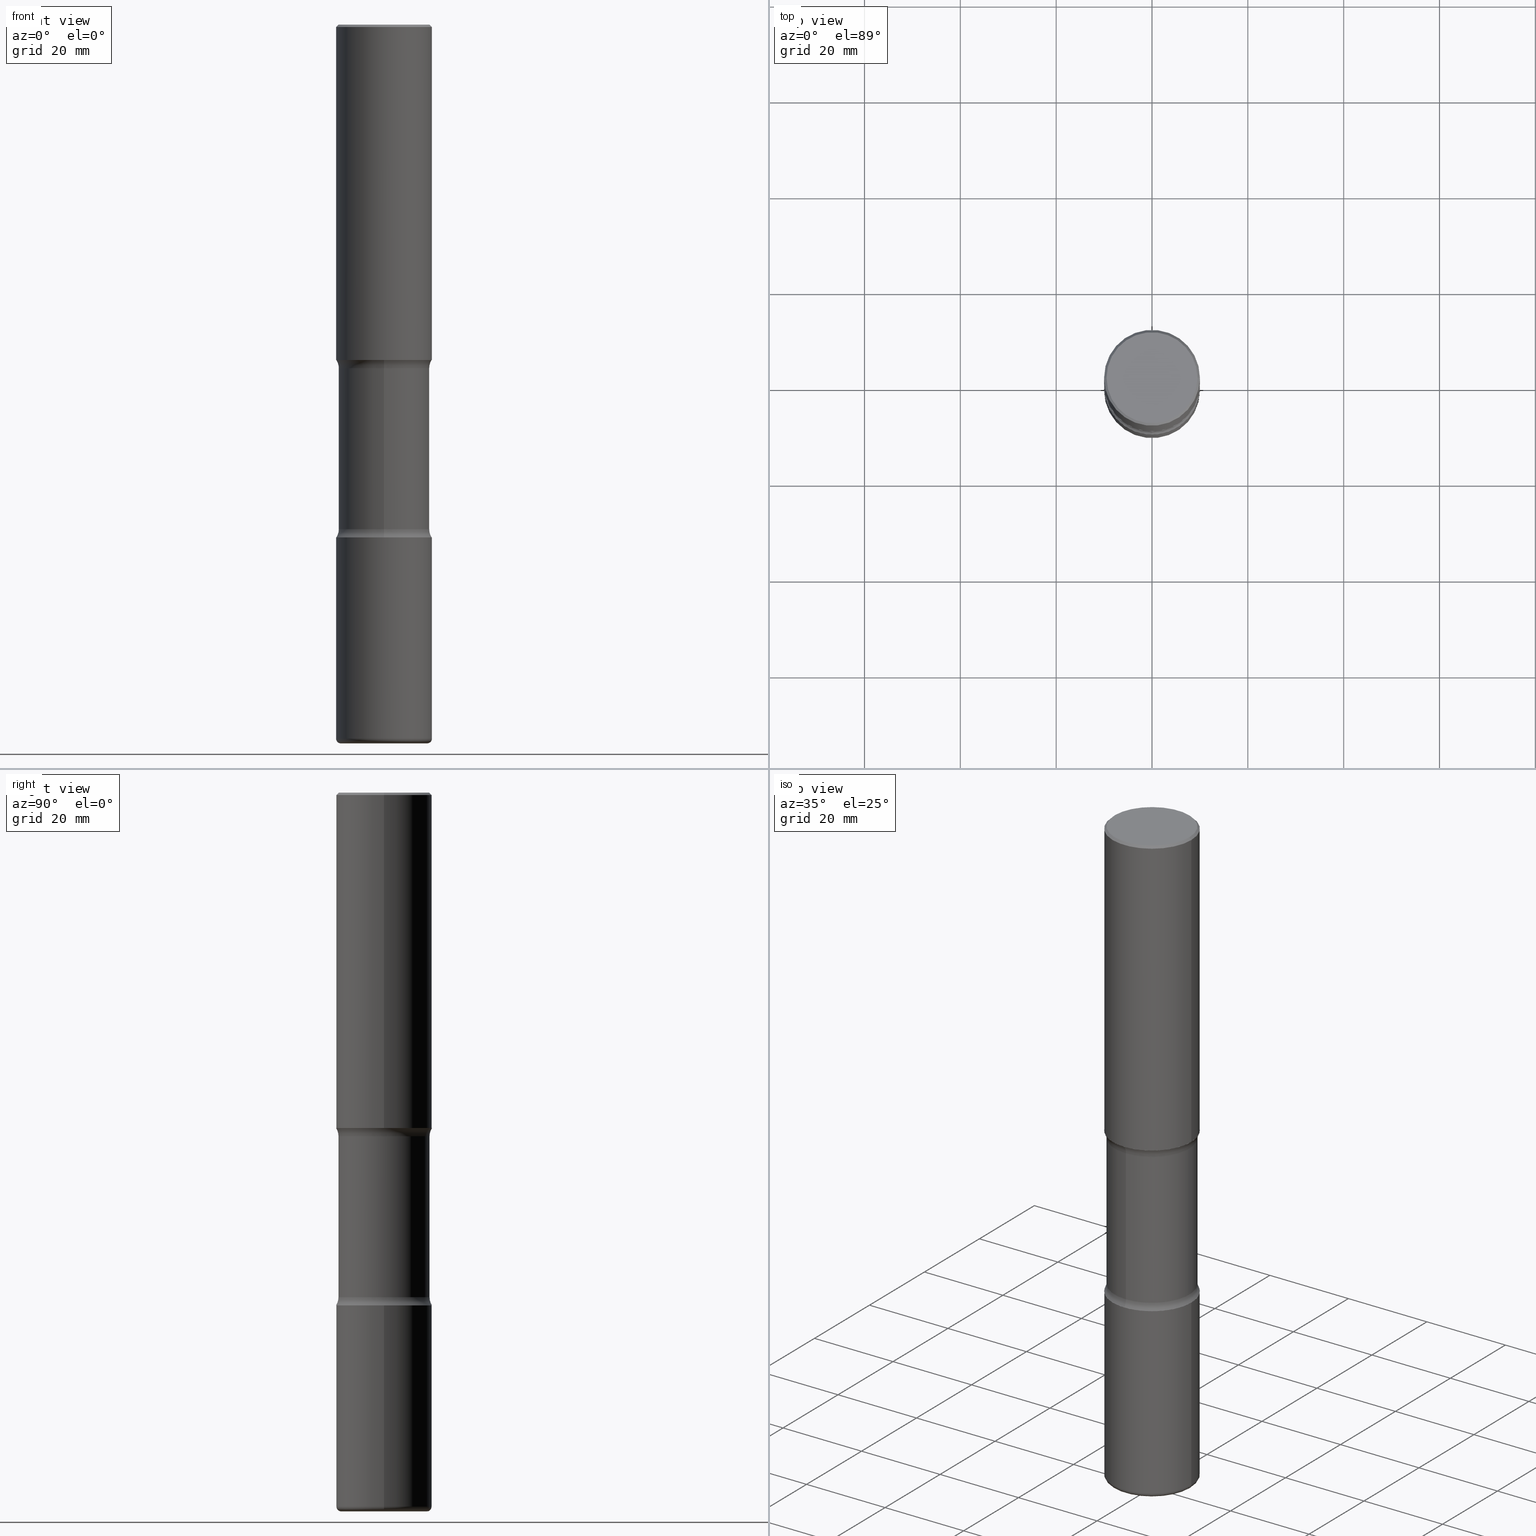
[diagram: canonical four-view strip — front | top / right | iso, engineering-drawing reading convention]
A machine part, canonical four-view strip (front | top / right | iso — engineering-drawing reading convention). The complete STEP part file that produces these views, byte-faithful:
ISO-10303-21;
HEADER;
FILE_DESCRIPTION (( 'STEP AP203' ),
    '1' );
FILE_NAME ('47743.STEP',
    '2024-03-02T08:20:14',
    ( '' ),
    ( '' ),
    'SwSTEP 2.0',
    'SolidWorks 2023',
    '' );
FILE_SCHEMA (( 'CONFIG_CONTROL_DESIGN' ));
ENDSEC;

DATA;
#1 = DIRECTION ( 'NONE',  ( -2.445468806185136597E-29, 3.491481338843145583E-15, 1.000000000000000000 ) ) ;
#2 = DIRECTION ( 'NONE',  ( 2.499563752616943710E-29, -3.414014296659653741E-15, -1.000000000000000000 ) ) ;
#3 = EDGE_CURVE ( 'NONE', #535, #453, #20, .T. ) ;
#4 = DIRECTION ( 'NONE',  ( 2.499563752616943430E-29, -3.414014296659653741E-15, -1.000000000000000000 ) ) ;
#5 = CIRCLE ( 'NONE', #272, 0.3543000000000003924 ) ;
#6 = AXIS2_PLACEMENT_3D ( 'NONE', #433, #38, #35 ) ;
#7 = CARTESIAN_POINT ( 'NONE',  ( 2.609533152651356620E-15, 0.3736999999999999211, -1.300498063835582814E-15 ) ) ;
#8 = DIRECTION ( 'NONE',  ( 1.000000000000000000, -6.982962677686266711E-15, 4.876176775795935793E-29 ) ) ;
#9 = ORIENTED_EDGE ( 'NONE', *, *, #31, .F. ) ;
#10 = FACE_OUTER_BOUND ( 'NONE', #75, .T. ) ;
#11 = EDGE_CURVE ( 'NONE', #15, #435, #157, .T. ) ;
#12 = CIRCLE ( 'NONE', #220, 0.3937000000000002720 ) ;
#13 = ORIENTED_EDGE ( 'NONE', *, *, #557, .T. ) ;
#14 = PERSON_AND_ORGANIZATION_ROLE ( 'creator' ) ;
#15 = VERTEX_POINT ( 'NONE', #68 ) ;
#16 = EDGE_CURVE ( 'NONE', #118, #361, #404, .T. ) ;
#17 = VERTEX_POINT ( 'NONE', #202 ) ;
#18 = PERSON ( 'UNSPECIFIED', 'UNSPECIFIED', 'UNSPECIFIED', ('UNSPECIFIED'), ('UNSPECIFIED'), ('UNSPECIFIED') ) ;
#19 = DATE_AND_TIME ( #374, #71 ) ;
#20 = CIRCLE ( 'NONE', #191, 0.3937000000000002720 ) ;
#21 = AXIS2_PLACEMENT_3D ( 'NONE', #248, #425, #493 ) ;
#22 = LOCAL_TIME ( 3, 20, 14.00000000000000000, #60 ) ;
#23 = DIRECTION ( 'NONE',  ( 1.000000000000000000, -6.982962677686280910E-15, 0.000000000000000000 ) ) ;
#24 = CARTESIAN_POINT ( 'NONE',  ( 1.434536456396262699E-28, -2.048137868178777275E-14, -5.866099999999998538 ) ) ;
#25 = ORIENTED_EDGE ( 'NONE', *, *, #406, .F. ) ;
#26 = DIRECTION ( 'NONE',  ( -2.445468806185136597E-29, 3.491481338843145583E-15, 1.000000000000000000 ) ) ;
#27 = ORIENTED_EDGE ( 'NONE', *, *, #3, .F. ) ;
#28 = DIRECTION ( 'NONE',  ( 1.000000000000000000, -6.982962677686266711E-15, 4.876176775795935793E-29 ) ) ;
#29 = CARTESIAN_POINT ( 'NONE',  ( -0.3936999999999999389, 2.679362779428219524E-15, -0.02000000000000010103 ) ) ;
#30 = VERTEX_POINT ( 'NONE', #261 ) ;
#31 = EDGE_CURVE ( 'NONE', #94, #196, #411, .T. ) ;
#32 = DIRECTION ( 'NONE',  ( 2.499563752616943710E-29, -3.414014296659653741E-15, -1.000000000000000000 ) ) ;
#33 = CIRCLE ( 'NONE', #346, 0.1249999999999999029 ) ;
#34 = ORIENTED_EDGE ( 'NONE', *, *, #508, .F. ) ;
#35 = DIRECTION ( 'NONE',  ( 6.982962677686266711E-15, 1.000000000000000000, -2.921762560068729411E-15 ) ) ;
#36 = DIRECTION ( 'NONE',  ( 6.982962677686265922E-15, 1.000000000000000000, -3.414014296659653741E-15 ) ) ;
#37 = DIRECTION ( 'NONE',  ( 2.499563752616943710E-29, -3.414014296659653741E-15, -1.000000000000000000 ) ) ;
#38 = DIRECTION ( 'NONE',  ( 2.499563752616943710E-29, -3.414014296659653741E-15, -1.000000000000000000 ) ) ;
#39 = EDGE_CURVE ( 'NONE', #284, #530, #525, .T. ) ;
#40 = FACE_OUTER_BOUND ( 'NONE', #496, .T. ) ;
#41 = CARTESIAN_POINT ( 'NONE',  ( 6.829029461346524548E-29, -9.964976017815853586E-15, -2.823256588393414646 ) ) ;
#42 = ORIENTED_EDGE ( 'NONE', *, *, #89, .F. ) ;
#43 = CIRCLE ( 'NONE', #21, 0.03940000000000026814 ) ;
#44 = AXIS2_PLACEMENT_3D ( 'NONE', #510, #293, #296 ) ;
#45 = CARTESIAN_POINT ( 'NONE',  ( 6.739467482965614869E-29, -9.622173421717819657E-15, -2.755899999999998240 ) ) ;
#46 = ADVANCED_FACE ( 'NONE', ( #40 ), #482, .F. ) ;
#47 = DIRECTION ( 'NONE',  ( 2.499563752616943710E-29, -3.414014296659653741E-15, -1.000000000000000000 ) ) ;
#48 = CARTESIAN_POINT ( 'NONE',  ( 1.434536456396262699E-28, -2.048137868178777275E-14, -5.866099999999998538 ) ) ;
#49 = CIRCLE ( 'NONE', #454, 0.3937000000000002164 ) ;
#50 = FACE_OUTER_BOUND ( 'NONE', #303, .T. ) ;
#51 = EDGE_CURVE ( 'NONE', #535, #435, #33, .T. ) ;
#52 = ORIENTED_EDGE ( 'NONE', *, *, #423, .T. ) ;
#53 = AXIS2_PLACEMENT_3D ( 'NONE', #521, #83, #265 ) ;
#54 = CARTESIAN_POINT ( 'NONE',  ( 6.660667374498401538E-29, -9.735019662066511300E-15, -2.755899999999998240 ) ) ;
#55 = COORDINATED_UNIVERSAL_TIME_OFFSET ( 5, 0, .BEHIND. ) ;
#56 = ORIENTED_EDGE ( 'NONE', *, *, #402, .F. ) ;
#57 = EDGE_CURVE ( 'NONE', #196, #94, #82, .T. ) ;
#58 = APPROVAL_DATE_TIME ( #457, #542 ) ;
#59 = DIRECTION ( 'NONE',  ( -2.445468806185136877E-29, 3.491481338843145188E-15, 1.000000000000000000 ) ) ;
#60 = COORDINATED_UNIVERSAL_TIME_OFFSET ( 5, 0, .BEHIND. ) ;
#61 = AXIS2_PLACEMENT_3D ( 'NONE', #513, #264, #436 ) ;
#62 = LOCAL_TIME ( 3, 20, 14.00000000000000000, #55 ) ;
#63 = DIRECTION ( 'NONE',  ( 1.000000000000000000, 0.000000000000000000, 0.000000000000000000 ) ) ;
#64 = ORIENTED_EDGE ( 'NONE', *, *, #487, .T. ) ;
#65 = APPROVAL ( #533, 'UNSPECIFIED' ) ;
#66 = EDGE_LOOP ( 'NONE', ( #391, #539 ) ) ;
#67 = CARTESIAN_POINT ( 'NONE',  ( 6.739467482965614869E-29, -9.622173421717819657E-15, -2.755899999999998240 ) ) ;
#68 = CARTESIAN_POINT ( 'NONE',  ( 2.611628041454733028E-15, 0.3739999999999901736, -2.823256588393415534 ) ) ;
#69 = CYLINDRICAL_SURFACE ( 'NONE', #6, 0.3740000000000001656 ) ;
#70 = CLOSED_SHELL ( 'NONE', ( #522, #125, #459, #92, #390, #115 ) ) ;
#71 = LOCAL_TIME ( 3, 20, 14.00000000000000000, #417 ) ;
#72 = ORIENTED_EDGE ( 'NONE', *, *, #57, .T. ) ;
#73 = ADVANCED_FACE ( 'NONE', ( #441 ), #537, .F. ) ;
#74 = DIRECTION ( 'NONE',  ( -2.445468806185136877E-29, 3.491481338843145188E-15, 1.000000000000000000 ) ) ;
#75 = EDGE_LOOP ( 'NONE', ( #134, #492 ) ) ;
#76 = DIRECTION ( 'NONE',  ( -6.982962677686264344E-15, -1.000000000000000000, 0.000000000000000000 ) ) ;
#77 = DIRECTION ( 'NONE',  ( -2.445468806185136597E-29, 3.491481338843145583E-15, 1.000000000000000000 ) ) ;
#78 = ORIENTED_EDGE ( 'NONE', *, *, #480, .F. ) ;
#79 = DIRECTION ( 'NONE',  ( -6.982962677686265922E-15, -1.000000000000000000, 3.414014296659653741E-15 ) ) ;
#80 = DIRECTION ( 'NONE',  ( -2.445468806185136597E-29, 3.491481338843145583E-15, 1.000000000000000000 ) ) ;
#81 = AXIS2_PLACEMENT_3D ( 'NONE', #552, #331, #550 ) ;
#82 = CIRCLE ( 'NONE', #145, 0.3936999999999999389 ) ;
#83 = DIRECTION ( 'NONE',  ( -2.445468806185136597E-29, 3.491481338843145583E-15, 1.000000000000000000 ) ) ;
#84 =( CONVERSION_BASED_UNIT ( 'INCH', #401 ) LENGTH_UNIT ( ) NAMED_UNIT ( #429 ) );
#85 = DIRECTION ( 'NONE',  ( -2.445468806185136597E-29, 3.491481338843145583E-15, 1.000000000000000000 ) ) ;
#86 = AXIS2_PLACEMENT_3D ( 'NONE', #121, #300, #475 ) ;
#87 = VECTOR ( 'NONE', #251, 39.37007874015748143 ) ;
#88 = SECURITY_CLASSIFICATION ( '', '', #232 ) ;
#89 = EDGE_CURVE ( 'NONE', #280, #138, #354, .T. ) ;
#90 = PRODUCT ( '47743', '47743', '', ( #135 ) ) ;
#91 = ORIENTED_EDGE ( 'NONE', *, *, #301, .F. ) ;
#92 = ADVANCED_FACE ( 'NONE', ( #445 ), #214, .F. ) ;
#93 = CYLINDRICAL_SURFACE ( 'NONE', #218, 0.3937000000000002164 ) ;
#94 = VERTEX_POINT ( 'NONE', #219 ) ;
#95 = VECTOR ( 'NONE', #59, 39.37007874015748143 ) ;
#96 = APPROVAL_PERSON_ORGANIZATION ( #490, #542, #104 ) ;
#97 = APPROVAL_STATUS ( 'not_yet_approved' ) ;
#98 = EDGE_LOOP ( 'NONE', ( #322, #422 ) ) ;
#99 = CARTESIAN_POINT ( 'NONE',  ( 0.000000000000000000, 0.000000000000000000, 0.000000000000000000 ) ) ;
#100 = DIRECTION ( 'NONE',  ( -2.445468806185136597E-29, 3.491481338843145583E-15, 1.000000000000000000 ) ) ;
#101 = ORIENTED_EDGE ( 'NONE', *, *, #312, .T. ) ;
#102 = DIRECTION ( 'NONE',  ( 6.860497997771527618E-15, 1.000000000000000000, 0.000000000000000000 ) ) ;
#103 = ORIENTED_EDGE ( 'NONE', *, *, #51, .F. ) ;
#104 = APPROVAL_ROLE ( '' ) ;
#105 = ADVANCED_FACE ( 'NONE', ( #177 ), #268, .T. ) ;
#106 = CIRCLE ( 'NONE', #483, 0.1249999999999998335 ) ;
#107 = ORGANIZATION ( 'UNSPECIFIED', 'UNSPECIFIED', '' ) ;
#108 = ORIENTED_EDGE ( 'NONE', *, *, #160, .F. ) ;
#109 = DIRECTION ( 'NONE',  ( 0.7071067811865466846, -7.319954787623252890E-15, -0.7071067811865483499 ) ) ;
#110 = DIRECTION ( 'NONE',  ( -2.445468806185136597E-29, 3.491481338843145583E-15, 1.000000000000000000 ) ) ;
#111 = ORIENTED_EDGE ( 'NONE', *, *, #278, .F. ) ;
#112 = EDGE_LOOP ( 'NONE', ( #42, #250, #72, #276 ) ) ;
#113 = CYLINDRICAL_SURFACE ( 'NONE', #166, 0.3937000000000002164 ) ;
#114 = EDGE_LOOP ( 'NONE', ( #91, #287 ) ) ;
#115 = ADVANCED_FACE ( 'NONE', ( #240 ), #357, .T. ) ;
#116 = DIRECTION ( 'NONE',  ( 6.982962677686265922E-15, 1.000000000000000000, -2.775563112689113540E-15 ) ) ;
#117 = CIRCLE ( 'NONE', #128, 0.3937000000000004385 ) ;
#118 = VERTEX_POINT ( 'NONE', #283 ) ;
#119 = VECTOR ( 'NONE', #109, 39.37007874015748143 ) ;
#120 = DIRECTION ( 'NONE',  ( -1.000000000000000000, 6.982962677686265922E-15, -4.876176775795935793E-29 ) ) ;
#121 = CARTESIAN_POINT ( 'NONE',  ( 1.013706345712835491E-28, -1.447304001658688186E-14, -4.145243411606583273 ) ) ;
#122 = CARTESIAN_POINT ( 'NONE',  ( 6.856494937320590076E-29, -9.925643892983175518E-15, -2.823256588393414201 ) ) ;
#123 = CARTESIAN_POINT ( 'NONE',  ( 2.749192406205187346E-15, 0.3936999999999854505, -4.212600000000000122 ) ) ;
#124 = CARTESIAN_POINT ( 'NONE',  ( 1.030178189293550378E-28, -1.470821428801063089E-14, -4.212599999999998346 ) ) ;
#125 = ADVANCED_FACE ( 'NONE', ( #353 ), #412, .T. ) ;
#126 = CLOSED_SHELL ( 'NONE', ( #538, #105, #271, #137, #213, #192 ) ) ;
#127 = CC_DESIGN_DATE_AND_TIME_ASSIGNMENT ( #362, #494, ( #88 ) ) ;
#128 = AXIS2_PLACEMENT_3D ( 'NONE', #54, #183, #224 ) ;
#129 = AXIS2_PLACEMENT_3D ( 'NONE', #150, #427, #281 ) ;
#130 = DIRECTION ( 'NONE',  ( 2.499563752616943710E-29, -3.414014296659653741E-15, -1.000000000000000000 ) ) ;
#131 = EDGE_CURVE ( 'NONE', #30, #541, #49, .T. ) ;
#132 = AXIS2_PLACEMENT_3D ( 'NONE', #554, #452, #139 ) ;
#133 = EDGE_LOOP ( 'NONE', ( #204, #25, #377, #399 ) ) ;
#134 = ORIENTED_EDGE ( 'NONE', *, *, #432, .T. ) ;
#135 = MECHANICAL_CONTEXT ( 'NONE', #358, 'mechanical' ) ;
#136 = PERSON_AND_ORGANIZATION_ROLE ( 'classification_officer' ) ;
#137 = ADVANCED_FACE ( 'NONE', ( #50 ), #369, .T. ) ;
#138 = VERTEX_POINT ( 'NONE', #231 ) ;
#139 = DIRECTION ( 'NONE',  ( -1.000000000000000000, 6.982962677686265922E-15, -4.876176775795935793E-29 ) ) ;
#140 = COORDINATED_UNIVERSAL_TIME_OFFSET ( 5, 0, .BEHIND. ) ;
#141 = CARTESIAN_POINT ( 'NONE',  ( 1.444171603492632270E-28, -2.061894304653819197E-14, -5.905499999999999972 ) ) ;
#142 = ORIENTED_EDGE ( 'NONE', *, *, #487, .F. ) ;
#143 = APPLICATION_PROTOCOL_DEFINITION ( 'international standard', 'config_control_design', 1994, #358 ) ;
#144 = PRODUCT_DEFINITION_SHAPE ( 'NONE', 'NONE',  #233 ) ;
#145 = AXIS2_PLACEMENT_3D ( 'NONE', #438, #205, #394 ) ;
#146 = APPROVAL_DATE_TIME ( #19, #187 ) ;
#147 = CARTESIAN_POINT ( 'NONE',  ( 1.434536456396262699E-28, -2.048137868178777275E-14, -5.866099999999998538 ) ) ;
#148 = COORDINATED_UNIVERSAL_TIME_OFFSET ( 5, 0, .BEHIND. ) ;
#149 = CARTESIAN_POINT ( 'NONE',  ( 0.3937000000000002720, -1.745740669421571411E-14, -4.212599999999998346 ) ) ;
#150 = CARTESIAN_POINT ( 'NONE',  ( 1.030178189293550378E-28, -1.470821428801063089E-14, -4.212599999999998346 ) ) ;
#151 = EDGE_CURVE ( 'NONE', #379, #361, #117, .T. ) ;
#152 = DIRECTION ( 'NONE',  ( 1.000000000000000000, -6.982962677686266711E-15, 4.883557194083112340E-29 ) ) ;
#153 = DATE_AND_TIME ( #225, #62 ) ;
#154 = ORIENTED_EDGE ( 'NONE', *, *, #432, .F. ) ;
#155 = CIRCLE ( 'NONE', #420, 0.3937000000000002720 ) ;
#156 = CIRCLE ( 'NONE', #252, 0.3740000000000001656 ) ;
#157 = LINE ( 'NONE', #340, #332 ) ;
#158 = DIRECTION ( 'NONE',  ( 1.000000000000000000, -6.982962677686266711E-15, 4.876176775795935793E-29 ) ) ;
#159 = DIRECTION ( 'NONE',  ( 2.499563752616943710E-29, -3.414014296659653741E-15, -1.000000000000000000 ) ) ;
#160 = EDGE_CURVE ( 'NONE', #30, #325, #229, .T. ) ;
#161 = CARTESIAN_POINT ( 'NONE',  ( 4.890937612370298557E-31, -6.982962677686327354E-17, -0.02000000000000010103 ) ) ;
#162 = LINE ( 'NONE', #389, #87 ) ;
#163 = ORIENTED_EDGE ( 'NONE', *, *, #57, .F. ) ;
#164 = CARTESIAN_POINT ( 'NONE',  ( 6.739467482965614869E-29, -9.622173421717819657E-15, -2.755899999999998240 ) ) ;
#165 = CARTESIAN_POINT ( 'NONE',  ( 6.660667374498401538E-29, -9.735019662066511300E-15, -2.755899999999998240 ) ) ;
#166 = AXIS2_PLACEMENT_3D ( 'NONE', #372, #376, #534 ) ;
#167 = APPLICATION_CONTEXT ( 'configuration controlled 3d designs of mechanical parts and assemblies' ) ;
#168 = CC_DESIGN_PERSON_AND_ORGANIZATION_ASSIGNMENT ( #416, #14, ( #233 ) ) ;
#169 = PLANE ( 'NONE',  #405 ) ;
#170 = CARTESIAN_POINT ( 'NONE',  ( 6.739467482965614869E-29, -9.622173421717819657E-15, -2.755899999999998240 ) ) ;
#171 = CARTESIAN_POINT ( 'NONE',  ( 0.3937000000000004385, -2.323057108799285912E-14, -5.866099999999998538 ) ) ;
#172 =( LENGTH_UNIT ( ) NAMED_UNIT ( * ) SI_UNIT ( $, .METRE. ) );
#173 = AXIS2_PLACEMENT_3D ( 'NONE', #141, #239, #502 ) ;
#174 = CARTESIAN_POINT ( 'NONE',  ( 4.890937612370298557E-31, -6.982962677686327354E-17, -0.02000000000000010103 ) ) ;
#175 = ADVANCED_FACE ( 'NONE', ( #410 ), #193, .F. ) ;
#176 = UNCERTAINTY_MEASURE_WITH_UNIT (LENGTH_MEASURE( 1.000000000000000082E-05 ), #84, 'distance_accuracy_value', 'NONE');
#177 = FACE_OUTER_BOUND ( 'NONE', #316, .T. ) ;
#178 = ORIENTED_EDGE ( 'NONE', *, *, #443, .T. ) ;
#179 = AXIS2_PLACEMENT_3D ( 'NONE', #170, #4, #355 ) ;
#180 = EDGE_CURVE ( 'NONE', #530, #196, #473, .T. ) ;
#181 = PERSON_AND_ORGANIZATION ( #18, #107 ) ;
#182 = PRODUCT_RELATED_PRODUCT_CATEGORY ( 'detail', '', ( #90 ) ) ;
#183 = DIRECTION ( 'NONE',  ( 2.499563752616943710E-29, -3.414014296659653741E-15, -1.000000000000000000 ) ) ;
#184 = AXIS2_PLACEMENT_3D ( 'NONE', #67, #80, #249 ) ;
#185 = VECTOR ( 'NONE', #130, 39.37007874015748143 ) ;
#186 = PERSON_AND_ORGANIZATION ( #18, #107 ) ;
#187 = APPROVAL ( #499, 'UNSPECIFIED' ) ;
#188 = DIRECTION ( 'NONE',  ( 6.982962677686266711E-15, 1.000000000000000000, -2.921762560068729411E-15 ) ) ;
#189 = ORIENTED_EDGE ( 'NONE', *, *, #246, .T. ) ;
#190 = DIRECTION ( 'NONE',  ( 1.000000000000000000, -6.982962677686265133E-15, 0.000000000000000000 ) ) ;
#191 = AXIS2_PLACEMENT_3D ( 'NONE', #383, #37, #463 ) ;
#192 = ADVANCED_FACE ( 'NONE', ( #10 ), #201, .F. ) ;
#193 = TOROIDAL_SURFACE ( 'NONE', #217, 0.4990000000000000546, 0.1249999999999998612 ) ;
#194 = CONICAL_SURFACE ( 'NONE', #210, 0.3936999999999999389, 0.7853981633974471688 ) ;
#195 = DIRECTION ( 'NONE',  ( -0.7071067811865466846, 2.468850131082247989E-15, -0.7071067811865483499 ) ) ;
#196 = VERTEX_POINT ( 'NONE', #299 ) ;
#197 = CARTESIAN_POINT ( 'NONE',  ( 1.434536456396262699E-28, -2.048137868178777275E-14, -5.866099999999998538 ) ) ;
#198 = ORIENTED_EDGE ( 'NONE', *, *, #16, .T. ) ;
#199 = PLANE ( 'NONE',  #237 ) ;
#200 = VERTEX_POINT ( 'NONE', #149 ) ;
#201 = PLANE ( 'NONE',  #396 ) ;
#202 = CARTESIAN_POINT ( 'NONE',  ( 0.3543000000000003924, -2.309300672324243991E-14, -5.905499999999999972 ) ) ;
#203 = PLANE ( 'NONE',  #132 ) ;
#204 = ORIENTED_EDGE ( 'NONE', *, *, #491, .F. ) ;
#205 = DIRECTION ( 'NONE',  ( -2.445468806185136597E-29, 3.491481338843145583E-15, 1.000000000000000000 ) ) ;
#206 = DIRECTION ( 'NONE',  ( 2.445468806185136597E-29, -3.491481338843145583E-15, -1.000000000000000000 ) ) ;
#207 = ORIENTED_EDGE ( 'NONE', *, *, #480, .T. ) ;
#208 = DIRECTION ( 'NONE',  ( 6.982962677686266711E-15, 1.000000000000000000, -2.921762560068729411E-15 ) ) ;
#209 = AXIS2_PLACEMENT_3D ( 'NONE', #122, #304, #245 ) ;
#210 = AXIS2_PLACEMENT_3D ( 'NONE', #333, #206, #512 ) ;
#211 = DIRECTION ( 'NONE',  ( -2.445468806185136597E-29, 3.491481338843145583E-15, 1.000000000000000000 ) ) ;
#212 = EDGE_LOOP ( 'NONE', ( #256, #198, #52, #501 ) ) ;
#213 = ADVANCED_FACE ( 'NONE', ( #464 ), #113, .T. ) ;
#214 = PLANE ( 'NONE',  #318 ) ;
#215 = CARTESIAN_POINT ( 'NONE',  ( -2.565826251166408560E-15, -0.3740000000000206493, -5.905499999999997307 ) ) ;
#216 = EDGE_CURVE ( 'NONE', #17, #294, #558, .T. ) ;
#217 = AXIS2_PLACEMENT_3D ( 'NONE', #292, #476, #375 ) ;
#218 = AXIS2_PLACEMENT_3D ( 'NONE', #99, #211, #158 ) ;
#219 = CARTESIAN_POINT ( 'NONE',  ( -0.3936999999999999389, 2.679362779428219524E-15, -0.02000000000000010103 ) ) ;
#220 = AXIS2_PLACEMENT_3D ( 'NONE', #466, #77, #551 ) ;
#221 = ADVANCED_FACE ( 'NONE', ( #328 ), #282, .F. ) ;
#222 = APPROVAL_PERSON_ORGANIZATION ( #269, #187, #515 ) ;
#223 = CC_DESIGN_APPROVAL ( #542, ( #88 ) ) ;
#224 = DIRECTION ( 'NONE',  ( 6.982962677686265922E-15, 1.000000000000000000, -2.775563112689113540E-15 ) ) ;
#225 = CALENDAR_DATE ( 2024, 2, 3 ) ;
#226 = MANIFOLD_SOLID_BREP ( 'Body-Move/Copy2[4]', #546 ) ;
#227 = APPLICATION_PROTOCOL_DEFINITION ( 'international standard', 'config_control_design', 1994, #167 ) ;
#228 = MANIFOLD_SOLID_BREP ( 'Body-Move/Copy2[1]', #126 ) ;
#229 = LINE ( 'NONE', #324, #504 ) ;
#230 = SHAPE_DEFINITION_REPRESENTATION ( #144, #344 ) ;
#231 = CARTESIAN_POINT ( 'NONE',  ( -0.3736999999999999211, 2.644447966039788269E-15, 8.537024980182450727E-18 ) ) ;
#232 = SECURITY_CLASSIFICATION_LEVEL ( 'unclassified' ) ;
#233 = PRODUCT_DEFINITION ( 'UNKNOWN', '', #297, #234 ) ;
#234 = DESIGN_CONTEXT ( 'detailed design', #167, 'design' ) ;
#235 = DIRECTION ( 'NONE',  ( -6.982962677686266711E-15, -1.000000000000000000, 3.491481338843145583E-15 ) ) ;
#236 = EDGE_LOOP ( 'NONE', ( #393, #189, #163, #465 ) ) ;
#237 = AXIS2_PLACEMENT_3D ( 'NONE', #45, #306, #302 ) ;
#238 = AXIS2_PLACEMENT_3D ( 'NONE', #458, #407, #8 ) ;
#239 = DIRECTION ( 'NONE',  ( -2.445468806185136597E-29, 3.491481338843145583E-15, 1.000000000000000000 ) ) ;
#240 = FACE_OUTER_BOUND ( 'NONE', #290, .T. ) ;
#241 = ORIENTED_EDGE ( 'NONE', *, *, #16, .F. ) ;
#242 = DIRECTION ( 'NONE',  ( 2.499563752616943710E-29, -3.414014296659653741E-15, -1.000000000000000000 ) ) ;
#243 = FACE_OUTER_BOUND ( 'NONE', #98, .T. ) ;
#244 = DIRECTION ( 'NONE',  ( 2.499563752616943710E-29, -3.414014296659653741E-15, -1.000000000000000000 ) ) ;
#245 = DIRECTION ( 'NONE',  ( 6.982962677686265922E-15, 1.000000000000000000, -3.414014296659653741E-15 ) ) ;
#246 = EDGE_CURVE ( 'NONE', #284, #94, #398, .T. ) ;
#247 = DIRECTION ( 'NONE',  ( 0.000000000000000000, 0.000000000000000000, 1.000000000000000000 ) ) ;
#248 = CARTESIAN_POINT ( 'NONE',  ( -0.3543000000000003924, -1.796392576898973579E-14, -5.866099999999998538 ) ) ;
#249 = DIRECTION ( 'NONE',  ( 1.000000000000000000, -6.982962677686265133E-15, 0.000000000000000000 ) ) ;
#250 = ORIENTED_EDGE ( 'NONE', *, *, #491, .T. ) ;
#251 = DIRECTION ( 'NONE',  ( -2.445468806185136877E-29, 3.491481338843145188E-15, 1.000000000000000000 ) ) ;
#252 = AXIS2_PLACEMENT_3D ( 'NONE', #523, #2, #479 ) ;
#253 = AXIS2_PLACEMENT_3D ( 'NONE', #197, #26, #285 ) ;
#254 = CARTESIAN_POINT ( 'NONE',  ( -0.3937000000000001054, 2.797406750687515181E-15, -1.936584745033357016E-29 ) ) ;
#255 = CYLINDRICAL_SURFACE ( 'NONE', #472, 0.3740000000000001656 ) ;
#256 = ORIENTED_EDGE ( 'NONE', *, *, #312, .F. ) ;
#257 = FACE_OUTER_BOUND ( 'NONE', #388, .T. ) ;
#258 = DIRECTION ( 'NONE',  ( -1.000000000000000000, 6.982962677686265922E-15, -4.883557194083112340E-29 ) ) ;
#259 = CARTESIAN_POINT ( 'NONE',  ( -2.700978061722549884E-15, -0.3937000000000149269, -4.212599999999997458 ) ) ;
#260 = CC_DESIGN_DATE_AND_TIME_ASSIGNMENT ( #532, #275, ( #233 ) ) ;
#261 = CARTESIAN_POINT ( 'NONE',  ( -0.3937000000000004385, -1.768397193110025560E-14, -5.866099999999998538 ) ) ;
#262 = DIRECTION ( 'NONE',  ( 6.982962677686265922E-15, 1.000000000000000000, -2.775563112689114723E-15 ) ) ;
#263 = CIRCLE ( 'NONE', #529, 0.3736999999999999211 ) ;
#264 = DIRECTION ( 'NONE',  ( 2.499563752616943710E-29, -3.414014296659653741E-15, -1.000000000000000000 ) ) ;
#265 = DIRECTION ( 'NONE',  ( 1.000000000000000000, -6.982962677686266711E-15, 4.876212485538976239E-29 ) ) ;
#266 = DIRECTION ( 'NONE',  ( 1.000000000000000000, -6.860497997771530774E-15, 4.841747577276637457E-29 ) ) ;
#267 = CC_DESIGN_PERSON_AND_ORGANIZATION_ASSIGNMENT ( #181, #364, ( #297 ) ) ;
#268 = TOROIDAL_SURFACE ( 'NONE', #360, 0.3543000000000003924, 0.03940000000000026814 ) ;
#269 = PERSON_AND_ORGANIZATION ( #18, #107 ) ;
#270 = ORIENTED_EDGE ( 'NONE', *, *, #443, .F. ) ;
#271 = ADVANCED_FACE ( 'NONE', ( #257 ), #203, .T. ) ;
#272 = AXIS2_PLACEMENT_3D ( 'NONE', #326, #367, #500 ) ;
#273 = CIRCLE ( 'NONE', #253, 0.3937000000000002164 ) ;
#274 = CARTESIAN_POINT ( 'NONE',  ( 0.3543000000000003924, -2.295544235849201754E-14, -5.866099999999998538 ) ) ;
#275 = DATE_TIME_ROLE ( 'creation_date' ) ;
#276 = ORIENTED_EDGE ( 'NONE', *, *, #528, .F. ) ;
#277 = ORIENTED_EDGE ( 'NONE', *, *, #151, .T. ) ;
#278 = EDGE_CURVE ( 'NONE', #17, #541, #495, .T. ) ;
#279 = ORIENTED_EDGE ( 'NONE', *, *, #131, .T. ) ;
#280 = VERTEX_POINT ( 'NONE', #313 ) ;
#281 = DIRECTION ( 'NONE',  ( 1.000000000000000000, -6.982962677686269077E-15, 0.000000000000000000 ) ) ;
#282 = TOROIDAL_SURFACE ( 'NONE', #334, 0.4990000000000002212, 0.1249999999999998751 ) ;
#283 = CARTESIAN_POINT ( 'NONE',  ( -2.633402156444536217E-15, -0.3740000000000101577, -2.823256588393413313 ) ) ;
#284 = VERTEX_POINT ( 'NONE', #330 ) ;
#285 = DIRECTION ( 'NONE',  ( 1.000000000000000000, -6.982962677686265133E-15, 0.000000000000000000 ) ) ;
#286 = DIRECTION ( 'NONE',  ( -2.445468806185136597E-29, 3.491481338843145583E-15, 1.000000000000000000 ) ) ;
#287 = ORIENTED_EDGE ( 'NONE', *, *, #39, .F. ) ;
#288 = EDGE_CURVE ( 'NONE', #15, #118, #156, .T. ) ;
#289 = CARTESIAN_POINT ( 'NONE',  ( 1.030178189293550378E-28, -1.470821428801063089E-14, -4.212599999999998346 ) ) ;
#290 = EDGE_LOOP ( 'NONE', ( #509, #434, #474, #9 ) ) ;
#291 = CC_DESIGN_PERSON_AND_ORGANIZATION_ASSIGNMENT ( #497, #136, ( #88 ) ) ;
#292 = CARTESIAN_POINT ( 'NONE',  ( 6.856494937320590076E-29, -9.925643892983175518E-15, -2.823256588393414201 ) ) ;
#293 = DIRECTION ( 'NONE',  ( 2.499563752616943710E-29, -3.414014296659653741E-15, -1.000000000000000000 ) ) ;
#294 = VERTEX_POINT ( 'NONE', #505 ) ;
#295 =( NAMED_UNIT ( * ) PLANE_ANGLE_UNIT ( ) SI_UNIT ( $, .RADIAN. ) );
#296 = DIRECTION ( 'NONE',  ( 6.982962677686266711E-15, 1.000000000000000000, -2.921762560068729411E-15 ) ) ;
#297 = PRODUCT_DEFINITION_FORMATION_WITH_SPECIFIED_SOURCE ( 'ANY', '', #90, .NOT_KNOWN. ) ;
#298 = CARTESIAN_POINT ( 'NONE',  ( 1.013706345712835491E-28, -1.447304001658688186E-14, -4.145243411606583273 ) ) ;
#299 = CARTESIAN_POINT ( 'NONE',  ( 0.3936999999999999389, -2.770807688499514945E-15, -0.02000000000000010103 ) ) ;
#300 = DIRECTION ( 'NONE',  ( 2.499563752616943710E-29, -3.414014296659653741E-15, -1.000000000000000000 ) ) ;
#301 = EDGE_CURVE ( 'NONE', #530, #284, #489, .T. ) ;
#302 = DIRECTION ( 'NONE',  ( 1.000000000000000000, -6.982962677686265922E-15, 4.876176775795935793E-29 ) ) ;
#303 = EDGE_LOOP ( 'NONE', ( #339, #545, #320, #349 ) ) ;
#304 = DIRECTION ( 'NONE',  ( 2.499563752616943710E-29, -3.414014296659653741E-15, -1.000000000000000000 ) ) ;
#305 = CARTESIAN_POINT ( 'NONE',  ( -3.423388500887893787E-15, -0.4990000000000146541, -4.145243411606581496 ) ) ;
#306 = DIRECTION ( 'NONE',  ( -2.438088387897960049E-29, 3.491481338843145188E-15, 1.000000000000000000 ) ) ;
#307 = CIRCLE ( 'NONE', #44, 0.3740000000000001656 ) ;
#308 = ADVANCED_FACE ( 'NONE', ( #440 ), #403, .F. ) ;
#309 = DIRECTION ( 'NONE',  ( -1.000000000000000000, 6.982962677686266711E-15, 0.000000000000000000 ) ) ;
#310 = CIRCLE ( 'NONE', #61, 0.3740000000000001656 ) ;
#311 = CC_DESIGN_APPROVAL ( #187, ( #233 ) ) ;
#312 = EDGE_CURVE ( 'NONE', #118, #15, #526, .T. ) ;
#313 = CARTESIAN_POINT ( 'NONE',  ( 0.3736999999999999211, -2.667287895133367964E-15, 8.537024980219274507E-18 ) ) ;
#314 = ORIENTED_EDGE ( 'NONE', *, *, #216, .T. ) ;
#315 = PERSON_AND_ORGANIZATION ( #18, #107 ) ;
#316 = EDGE_LOOP ( 'NONE', ( #314, #514, #142, #111 ) ) ;
#317 = EDGE_CURVE ( 'NONE', #294, #30, #43, .T. ) ;
#318 = AXIS2_PLACEMENT_3D ( 'NONE', #7, #447, #451 ) ;
#319 = FACE_OUTER_BOUND ( 'NONE', #555, .T. ) ;
#320 = ORIENTED_EDGE ( 'NONE', *, *, #278, .T. ) ;
#321 = PERSON_AND_ORGANIZATION_ROLE ( 'creator' ) ;
#322 = ORIENTED_EDGE ( 'NONE', *, *, #3, .T. ) ;
#323 = FACE_OUTER_BOUND ( 'NONE', #133, .T. ) ;
#324 = CARTESIAN_POINT ( 'NONE',  ( -0.3937000000000002164, 2.797406750687515970E-15, -1.936584745033357576E-29 ) ) ;
#325 = VERTEX_POINT ( 'NONE', #456 ) ;
#326 = CARTESIAN_POINT ( 'NONE',  ( 1.444171603492632270E-28, -2.061894304653819197E-14, -5.905499999999999972 ) ) ;
#327 = CALENDAR_DATE ( 2024, 2, 3 ) ;
#328 = FACE_OUTER_BOUND ( 'NONE', #470, .T. ) ;
#329 = ORIENTED_EDGE ( 'NONE', *, *, #414, .T. ) ;
#330 = CARTESIAN_POINT ( 'NONE',  ( -0.3937000000000002720, -2.048594773559823141E-15, -2.755899999999998240 ) ) ;
#331 = DIRECTION ( 'NONE',  ( 1.000000000000000000, -6.860497997771530774E-15, 4.841747577276637457E-29 ) ) ;
#332 = VECTOR ( 'NONE', #478, 39.37007874015748143 ) ;
#333 = CARTESIAN_POINT ( 'NONE',  ( 4.890937612370298557E-31, -6.982962677686327354E-17, -0.02000000000000010103 ) ) ;
#334 = AXIS2_PLACEMENT_3D ( 'NONE', #298, #32, #36 ) ;
#335 = EDGE_CURVE ( 'NONE', #294, #17, #5, .T. ) ;
#336 = ORIENTED_EDGE ( 'NONE', *, *, #11, .F. ) ;
#337 = PERSON_AND_ORGANIZATION ( #18, #107 ) ;
#338 = CARTESIAN_POINT ( 'NONE',  ( 2.611628041454766160E-15, 0.3739999999999856772, -4.145243411606584161 ) ) ;
#339 = ORIENTED_EDGE ( 'NONE', *, *, #317, .F. ) ;
#340 = CARTESIAN_POINT ( 'NONE',  ( 2.611628041454809941E-15, 0.3739999999999796820, -5.905499999999999972 ) ) ;
#341 = CARTESIAN_POINT ( 'NONE',  ( 1.030178189293550378E-28, -1.470821428801063089E-14, -4.212599999999998346 ) ) ;
#342 = CARTESIAN_POINT ( 'NONE',  ( 3.484498376165549498E-15, 0.4989999999999857327, -4.145243411606585049 ) ) ;
#343 = CC_DESIGN_PERSON_AND_ORGANIZATION_ASSIGNMENT ( #337, #415, ( #90 ) ) ;
#344 = ADVANCED_BREP_SHAPE_REPRESENTATION ( '47743', ( #228, #439, #226, #559 ), #519 ) ;
#345 = FACE_OUTER_BOUND ( 'NONE', #548, .T. ) ;
#346 = AXIS2_PLACEMENT_3D ( 'NONE', #342, #258, #76 ) ;
#347 = CARTESIAN_POINT ( 'NONE',  ( 0.3937000000000002164, -1.237136582792290287E-14, -2.755899999999998240 ) ) ;
#348 = CC_DESIGN_APPROVAL ( #65, ( #297 ) ) ;
#349 = ORIENTED_EDGE ( 'NONE', *, *, #131, .F. ) ;
#350 = DIRECTION ( 'NONE',  ( 1.000000000000000000, -6.982962677686266711E-15, 4.883557194083112340E-29 ) ) ;
#351 =( NAMED_UNIT ( * ) SI_UNIT ( $, .STERADIAN. ) SOLID_ANGLE_UNIT ( ) );
#352 = DIRECTION ( 'NONE',  ( 1.000000000000000000, -6.982962677686266711E-15, 4.876212485538976239E-29 ) ) ;
#353 = FACE_OUTER_BOUND ( 'NONE', #112, .T. ) ;
#354 = CIRCLE ( 'NONE', #53, 0.3736999999999999211 ) ;
#355 = DIRECTION ( 'NONE',  ( 6.982962677686265922E-15, 1.000000000000000000, -3.414014296659653741E-15 ) ) ;
#356 = APPROVAL_PERSON_ORGANIZATION ( #315, #65, #378 ) ;
#357 = CYLINDRICAL_SURFACE ( 'NONE', #413, 0.3937000000000001054 ) ;
#358 = APPLICATION_CONTEXT ( 'configuration controlled 3d designs of mechanical parts and assemblies' ) ;
#359 = ADVANCED_FACE ( 'NONE', ( #243 ), #169, .F. ) ;
#360 = AXIS2_PLACEMENT_3D ( 'NONE', #24, #486, #350 ) ;
#361 = VERTEX_POINT ( 'NONE', #395 ) ;
#362 = DATE_AND_TIME ( #368, #397 ) ;
#363 = ORIENTED_EDGE ( 'NONE', *, *, #11, .T. ) ;
#364 = PERSON_AND_ORGANIZATION_ROLE ( 'design_supplier' ) ;
#365 = EDGE_CURVE ( 'NONE', #541, #200, #162, .T. ) ;
#366 = ORIENTED_EDGE ( 'NONE', *, *, #365, .F. ) ;
#367 = DIRECTION ( 'NONE',  ( -2.445468806185136597E-29, 3.491481338843145583E-15, 1.000000000000000000 ) ) ;
#368 = CALENDAR_DATE ( 2024, 2, 3 ) ;
#369 = TOROIDAL_SURFACE ( 'NONE', #384, 0.3543000000000003924, 0.03940000000000026814 ) ;
#370 = ORIENTED_EDGE ( 'NONE', *, *, #216, .F. ) ;
#371 = CIRCLE ( 'NONE', #527, 0.1249999999999999029 ) ;
#372 = CARTESIAN_POINT ( 'NONE',  ( 0.000000000000000000, 0.000000000000000000, 0.000000000000000000 ) ) ;
#373 = DIRECTION ( 'NONE',  ( -2.445468806185136877E-29, 3.491481338843145188E-15, 1.000000000000000000 ) ) ;
#374 = CALENDAR_DATE ( 2024, 2, 3 ) ;
#375 = DIRECTION ( 'NONE',  ( 6.982962677686265922E-15, 1.000000000000000000, -3.414014296659653741E-15 ) ) ;
#376 = DIRECTION ( 'NONE',  ( -2.445468806185136597E-29, 3.491481338843145583E-15, 1.000000000000000000 ) ) ;
#377 = ORIENTED_EDGE ( 'NONE', *, *, #528, .T. ) ;
#378 = APPROVAL_ROLE ( '' ) ;
#379 = VERTEX_POINT ( 'NONE', #560 ) ;
#380 = EDGE_LOOP ( 'NONE', ( #511, #437 ) ) ;
#381 = EDGE_CURVE ( 'NONE', #453, #535, #155, .T. ) ;
#382 = ORIENTED_EDGE ( 'NONE', *, *, #335, .F. ) ;
#383 = CARTESIAN_POINT ( 'NONE',  ( 1.030178189293550378E-28, -1.470821428801063089E-14, -4.212599999999998346 ) ) ;
#384 = AXIS2_PLACEMENT_3D ( 'NONE', #147, #100, #152 ) ;
#385 = CARTESIAN_POINT ( 'NONE',  ( 3.484498376165515577E-15, 0.4989999999999901736, -2.823256588393415534 ) ) ;
#386 = EDGE_LOOP ( 'NONE', ( #455, #13, #56, #336 ) ) ;
#387 = LINE ( 'NONE', #468, #119 ) ;
#388 = EDGE_LOOP ( 'NONE', ( #370, #382 ) ) ;
#389 = CARTESIAN_POINT ( 'NONE',  ( 0.3937000000000002164, -2.749192406205084794E-15, 1.919750796630861012E-29 ) ) ;
#390 = ADVANCED_FACE ( 'NONE', ( #553 ), #199, .F. ) ;
#391 = ORIENTED_EDGE ( 'NONE', *, *, #151, .F. ) ;
#392 = DIRECTION ( 'NONE',  ( 1.000000000000000000, -6.982962677686266711E-15, 0.000000000000000000 ) ) ;
#393 = ORIENTED_EDGE ( 'NONE', *, *, #301, .T. ) ;
#394 = DIRECTION ( 'NONE',  ( 1.000000000000000000, -6.982962677686266711E-15, 0.000000000000000000 ) ) ;
#395 = CARTESIAN_POINT ( 'NONE',  ( -2.700978061722587749E-15, -0.3937000000000100419, -2.755899999999997352 ) ) ;
#396 = AXIS2_PLACEMENT_3D ( 'NONE', #289, #516, #120 ) ;
#397 = LOCAL_TIME ( 3, 20, 14.00000000000000000, #140 ) ;
#398 = LINE ( 'NONE', #254, #449 ) ;
#399 = ORIENTED_EDGE ( 'NONE', *, *, #31, .T. ) ;
#400 = CARTESIAN_POINT ( 'NONE',  ( -2.087702828670439639E-46, 2.980686340760894400E-32, 8.537024980200822558E-18 ) ) ;
#401 = LENGTH_MEASURE_WITH_UNIT ( LENGTH_MEASURE( 0.02539999999999999897 ), #172 );
#402 = EDGE_CURVE ( 'NONE', #435, #408, #310, .T. ) ;
#403 = PLANE ( 'NONE',  #179 ) ;
#404 = CIRCLE ( 'NONE', #81, 0.1249999999999998335 ) ;
#405 = AXIS2_PLACEMENT_3D ( 'NONE', #124, #444, #79 ) ;
#406 = EDGE_CURVE ( 'NONE', #138, #280, #263, .T. ) ;
#407 = DIRECTION ( 'NONE',  ( -2.445468806185136597E-29, 3.491481338843145583E-15, 1.000000000000000000 ) ) ;
#408 = VERTEX_POINT ( 'NONE', #520 ) ;
#409 = CARTESIAN_POINT ( 'NONE',  ( 0.3937000000000001054, -2.749192406205084005E-15, 1.919750796630860452E-29 ) ) ;
#410 = FACE_OUTER_BOUND ( 'NONE', #212, .T. ) ;
#411 = CIRCLE ( 'NONE', #418, 0.3936999999999999389 ) ;
#412 = CONICAL_SURFACE ( 'NONE', #471, 0.3936999999999999389, 0.7853981633974471688 ) ;
#413 = AXIS2_PLACEMENT_3D ( 'NONE', #524, #424, #28 ) ;
#414 = EDGE_CURVE ( 'NONE', #15, #379, #106, .T. ) ;
#415 = PERSON_AND_ORGANIZATION_ROLE ( 'design_owner' ) ;
#416 = PERSON_AND_ORGANIZATION ( #18, #107 ) ;
#417 = COORDINATED_UNIVERSAL_TIME_OFFSET ( 5, 0, .BEHIND. ) ;
#418 = AXIS2_PLACEMENT_3D ( 'NONE', #161, #110, #392 ) ;
#419 = EDGE_LOOP ( 'NONE', ( #241, #430, #329, #277 ) ) ;
#420 = AXIS2_PLACEMENT_3D ( 'NONE', #341, #47, #262 ) ;
#421 = ORIENTED_EDGE ( 'NONE', *, *, #557, .F. ) ;
#422 = ORIENTED_EDGE ( 'NONE', *, *, #381, .T. ) ;
#423 = EDGE_CURVE ( 'NONE', #361, #379, #547, .T. ) ;
#424 = DIRECTION ( 'NONE',  ( -2.445468806185136597E-29, 3.491481338843145583E-15, 1.000000000000000000 ) ) ;
#425 = DIRECTION ( 'NONE',  ( 7.105427357601001859E-15, 1.000000000000000000, -3.491481338843145583E-15 ) ) ;
#426 = LINE ( 'NONE', #29, #450 ) ;
#427 = DIRECTION ( 'NONE',  ( -2.445468806185136597E-29, 3.491481338843145583E-15, 1.000000000000000000 ) ) ;
#428 = ORIENTED_EDGE ( 'NONE', *, *, #381, .F. ) ;
#429 = DIMENSIONAL_EXPONENTS ( 1.000000000000000000, 0.000000000000000000, 0.000000000000000000, 0.000000000000000000, 0.000000000000000000, 0.000000000000000000, 0.000000000000000000 ) ;
#430 = ORIENTED_EDGE ( 'NONE', *, *, #288, .F. ) ;
#431 = CIRCLE ( 'NONE', #129, 0.3937000000000002720 ) ;
#432 = EDGE_CURVE ( 'NONE', #200, #325, #12, .T. ) ;
#433 = CARTESIAN_POINT ( 'NONE',  ( 1.453329336974072664E-28, -2.048779909082575425E-14, -5.905499999999998195 ) ) ;
#434 = ORIENTED_EDGE ( 'NONE', *, *, #39, .T. ) ;
#435 = VERTEX_POINT ( 'NONE', #338 ) ;
#436 = DIRECTION ( 'NONE',  ( 6.982962677686266711E-15, 1.000000000000000000, -2.921762560068729411E-15 ) ) ;
#437 = ORIENTED_EDGE ( 'NONE', *, *, #89, .T. ) ;
#438 = CARTESIAN_POINT ( 'NONE',  ( 4.890937612370298557E-31, -6.982962677686327354E-17, -0.02000000000000010103 ) ) ;
#439 = MANIFOLD_SOLID_BREP ( 'Body-Move/Copy2[2]', #70 ) ;
#440 = FACE_OUTER_BOUND ( 'NONE', #66, .T. ) ;
#441 = FACE_OUTER_BOUND ( 'NONE', #419, .T. ) ;
#442 = AXIS2_PLACEMENT_3D ( 'NONE', #165, #159, #116 ) ;
#443 = EDGE_CURVE ( 'NONE', #408, #435, #307, .T. ) ;
#444 = DIRECTION ( 'NONE',  ( -2.499563752616943430E-29, 3.414014296659653741E-15, 1.000000000000000000 ) ) ;
#445 = FACE_OUTER_BOUND ( 'NONE', #380, .T. ) ;
#446 = DIRECTION ( 'NONE',  ( 2.445468806185136597E-29, -3.491481338843145583E-15, -1.000000000000000000 ) ) ;
#447 = DIRECTION ( 'NONE',  ( 2.438088387897960049E-29, -3.491481338843145188E-15, -1.000000000000000000 ) ) ;
#448 = ADVANCED_FACE ( 'NONE', ( #345 ), #69, .T. ) ;
#449 = VECTOR ( 'NONE', #74, 39.37007874015748143 ) ;
#450 = VECTOR ( 'NONE', #195, 39.37007874015748143 ) ;
#451 = DIRECTION ( 'NONE',  ( -1.000000000000000000, 6.982962677686265922E-15, -4.876176775795935793E-29 ) ) ;
#452 = DIRECTION ( 'NONE',  ( 2.438088387897960049E-29, -3.491481338843145188E-15, -1.000000000000000000 ) ) ;
#453 = VERTEX_POINT ( 'NONE', #259 ) ;
#454 = AXIS2_PLACEMENT_3D ( 'NONE', #48, #85, #488 ) ;
#455 = ORIENTED_EDGE ( 'NONE', *, *, #288, .T. ) ;
#456 = CARTESIAN_POINT ( 'NONE',  ( -0.3937000000000002720, -1.479738973421168625E-14, -4.212599999999998346 ) ) ;
#457 = DATE_AND_TIME ( #327, #461 ) ;
#458 = CARTESIAN_POINT ( 'NONE',  ( 0.000000000000000000, 0.000000000000000000, 0.000000000000000000 ) ) ;
#459 = ADVANCED_FACE ( 'NONE', ( #323 ), #194, .T. ) ;
#460 = AXIS2_PLACEMENT_3D ( 'NONE', #274, #235, #23 ) ;
#461 = LOCAL_TIME ( 3, 20, 14.00000000000000000, #148 ) ;
#462 = FACE_OUTER_BOUND ( 'NONE', #386, .T. ) ;
#463 = DIRECTION ( 'NONE',  ( 6.982962677686265922E-15, 1.000000000000000000, -2.775563112689114723E-15 ) ) ;
#464 = FACE_OUTER_BOUND ( 'NONE', #517, .T. ) ;
#465 = ORIENTED_EDGE ( 'NONE', *, *, #180, .F. ) ;
#466 = CARTESIAN_POINT ( 'NONE',  ( 1.030178189293550378E-28, -1.470821428801063089E-14, -4.212599999999998346 ) ) ;
#467 = ORIENTED_EDGE ( 'NONE', *, *, #160, .T. ) ;
#468 = CARTESIAN_POINT ( 'NONE',  ( 0.3936999999999999389, -2.770807688499514945E-15, -0.02000000000000010103 ) ) ;
#469 = AXIS2_PLACEMENT_3D ( 'NONE', #164, #286, #190 ) ;
#470 = EDGE_LOOP ( 'NONE', ( #78, #27, #556, #506 ) ) ;
#471 = AXIS2_PLACEMENT_3D ( 'NONE', #174, #446, #309 ) ;
#472 = AXIS2_PLACEMENT_3D ( 'NONE', #544, #244, #188 ) ;
#473 = LINE ( 'NONE', #409, #95 ) ;
#474 = ORIENTED_EDGE ( 'NONE', *, *, #180, .T. ) ;
#475 = DIRECTION ( 'NONE',  ( 6.982962677686265922E-15, 1.000000000000000000, -3.414014296659653741E-15 ) ) ;
#476 = DIRECTION ( 'NONE',  ( 2.499563752616943710E-29, -3.414014296659653741E-15, -1.000000000000000000 ) ) ;
#477 = DIRECTION ( 'NONE',  ( -6.982962677686268288E-15, -1.000000000000000000, 0.000000000000000000 ) ) ;
#478 = DIRECTION ( 'NONE',  ( 2.499563752616943710E-29, -3.414014296659653741E-15, -1.000000000000000000 ) ) ;
#479 = DIRECTION ( 'NONE',  ( 6.982962677686266711E-15, 1.000000000000000000, -2.921762560068729411E-15 ) ) ;
#480 = EDGE_CURVE ( 'NONE', #453, #408, #371, .T. ) ;
#481 = CARTESIAN_POINT ( 'NONE',  ( 0.000000000000000000, 0.000000000000000000, 0.000000000000000000 ) ) ;
#482 = TOROIDAL_SURFACE ( 'NONE', #86, 0.4990000000000002212, 0.1249999999999998751 ) ;
#483 = AXIS2_PLACEMENT_3D ( 'NONE', #385, #549, #477 ) ;
#484 = CC_DESIGN_SECURITY_CLASSIFICATION ( #88, ( #297 ) ) ;
#485 = LINE ( 'NONE', #215, #185 ) ;
#486 = DIRECTION ( 'NONE',  ( -2.445468806185136597E-29, 3.491481338843145583E-15, 1.000000000000000000 ) ) ;
#487 = EDGE_CURVE ( 'NONE', #541, #30, #273, .T. ) ;
#488 = DIRECTION ( 'NONE',  ( 1.000000000000000000, -6.982962677686265133E-15, 0.000000000000000000 ) ) ;
#489 = CIRCLE ( 'NONE', #184, 0.3937000000000002164 ) ;
#490 = PERSON_AND_ORGANIZATION ( #18, #107 ) ;
#491 = EDGE_CURVE ( 'NONE', #280, #196, #387, .T. ) ;
#492 = ORIENTED_EDGE ( 'NONE', *, *, #508, .T. ) ;
#493 = DIRECTION ( 'NONE',  ( -1.000000000000000000, 7.105427357600976615E-15, 0.000000000000000000 ) ) ;
#494 = DATE_TIME_ROLE ( 'classification_date' ) ;
#495 = CIRCLE ( 'NONE', #460, 0.03940000000000026814 ) ;
#496 = EDGE_LOOP ( 'NONE', ( #428, #207, #178, #103 ) ) ;
#497 = PERSON_AND_ORGANIZATION ( #18, #107 ) ;
#498 = ADVANCED_FACE ( 'NONE', ( #462 ), #255, .T. ) ;
#499 = APPROVAL_STATUS ( 'not_yet_approved' ) ;
#500 = DIRECTION ( 'NONE',  ( 1.000000000000000000, -6.982962677686265133E-15, 0.000000000000000000 ) ) ;
#501 = ORIENTED_EDGE ( 'NONE', *, *, #414, .F. ) ;
#502 = DIRECTION ( 'NONE',  ( 1.000000000000000000, -6.982962677686265133E-15, 0.000000000000000000 ) ) ;
#503 = ORIENTED_EDGE ( 'NONE', *, *, #365, .T. ) ;
#504 = VECTOR ( 'NONE', #373, 39.37007874015748143 ) ;
#505 = CARTESIAN_POINT ( 'NONE',  ( -0.3543000000000003924, -1.789273103242020530E-14, -5.905499999999999972 ) ) ;
#506 = ORIENTED_EDGE ( 'NONE', *, *, #402, .T. ) ;
#507 = CYLINDRICAL_SURFACE ( 'NONE', #238, 0.3937000000000001054 ) ;
#508 = EDGE_CURVE ( 'NONE', #325, #200, #431, .T. ) ;
#509 = ORIENTED_EDGE ( 'NONE', *, *, #246, .F. ) ;
#510 = CARTESIAN_POINT ( 'NONE',  ( 1.013341980608738414E-28, -1.447825793226129018E-14, -4.145243411606583273 ) ) ;
#511 = ORIENTED_EDGE ( 'NONE', *, *, #406, .T. ) ;
#512 = DIRECTION ( 'NONE',  ( -1.000000000000000000, 6.982962677686266711E-15, 0.000000000000000000 ) ) ;
#513 = CARTESIAN_POINT ( 'NONE',  ( 1.013341980608738414E-28, -1.447825793226129018E-14, -4.145243411606583273 ) ) ;
#514 = ORIENTED_EDGE ( 'NONE', *, *, #317, .T. ) ;
#515 = APPROVAL_ROLE ( '' ) ;
#516 = DIRECTION ( 'NONE',  ( 2.438088387897960049E-29, -3.491481338843145188E-15, -1.000000000000000000 ) ) ;
#517 = EDGE_LOOP ( 'NONE', ( #108, #279, #503, #34 ) ) ;
#518 = AXIS2_PLACEMENT_3D ( 'NONE', #41, #242, #208 ) ;
#519 =( GEOMETRIC_REPRESENTATION_CONTEXT ( 3 ) GLOBAL_UNCERTAINTY_ASSIGNED_CONTEXT ( ( #176 ) ) GLOBAL_UNIT_ASSIGNED_CONTEXT ( ( #84, #295, #351 ) ) REPRESENTATION_CONTEXT ( 'NONE', 'WORKASPACE' ) );
#520 = CARTESIAN_POINT ( 'NONE',  ( -2.633402156444500718E-15, -0.3740000000000146541, -4.145243411606582384 ) ) ;
#521 = CARTESIAN_POINT ( 'NONE',  ( -2.087702828670439639E-46, 2.980686340760894400E-32, 8.537024980200822558E-18 ) ) ;
#522 = ADVANCED_FACE ( 'NONE', ( #540 ), #507, .T. ) ;
#523 = CARTESIAN_POINT ( 'NONE',  ( 6.829029461346524548E-29, -9.964976017815853586E-15, -2.823256588393414646 ) ) ;
#524 = CARTESIAN_POINT ( 'NONE',  ( 0.000000000000000000, 0.000000000000000000, 0.000000000000000000 ) ) ;
#525 = CIRCLE ( 'NONE', #469, 0.3937000000000002164 ) ;
#526 = CIRCLE ( 'NONE', #518, 0.3740000000000001656 ) ;
#527 = AXIS2_PLACEMENT_3D ( 'NONE', #305, #266, #102 ) ;
#528 = EDGE_CURVE ( 'NONE', #138, #94, #426, .T. ) ;
#529 = AXIS2_PLACEMENT_3D ( 'NONE', #400, #1, #352 ) ;
#530 = VERTEX_POINT ( 'NONE', #347 ) ;
#531 = CC_DESIGN_PERSON_AND_ORGANIZATION_ASSIGNMENT ( #186, #321, ( #297 ) ) ;
#532 = DATE_AND_TIME ( #536, #22 ) ;
#533 = APPROVAL_STATUS ( 'not_yet_approved' ) ;
#534 = DIRECTION ( 'NONE',  ( 1.000000000000000000, -6.982962677686266711E-15, 4.876176775795935793E-29 ) ) ;
#535 = VERTEX_POINT ( 'NONE', #123 ) ;
#536 = CALENDAR_DATE ( 2024, 2, 3 ) ;
#537 = TOROIDAL_SURFACE ( 'NONE', #209, 0.4990000000000000546, 0.1249999999999998612 ) ;
#538 = ADVANCED_FACE ( 'NONE', ( #319 ), #93, .T. ) ;
#539 = ORIENTED_EDGE ( 'NONE', *, *, #423, .F. ) ;
#540 = FACE_OUTER_BOUND ( 'NONE', #236, .T. ) ;
#541 = VERTEX_POINT ( 'NONE', #171 ) ;
#542 = APPROVAL ( #97, 'UNSPECIFIED' ) ;
#543 = APPROVAL_DATE_TIME ( #153, #65 ) ;
#544 = CARTESIAN_POINT ( 'NONE',  ( 1.453329336974072664E-28, -2.048779909082575425E-14, -5.905499999999998195 ) ) ;
#545 = ORIENTED_EDGE ( 'NONE', *, *, #335, .T. ) ;
#546 = CLOSED_SHELL ( 'NONE', ( #498, #46, #175, #73, #308, #359, #221, #448 ) ) ;
#547 = CIRCLE ( 'NONE', #442, 0.3937000000000004385 ) ;
#548 = EDGE_LOOP ( 'NONE', ( #421, #101, #363, #270 ) ) ;
#549 = DIRECTION ( 'NONE',  ( -1.000000000000000000, 6.982962677686265922E-15, -4.883557194083112340E-29 ) ) ;
#550 = DIRECTION ( 'NONE',  ( 6.860497997771531562E-15, 1.000000000000000000, 0.000000000000000000 ) ) ;
#551 = DIRECTION ( 'NONE',  ( 1.000000000000000000, -6.982962677686269077E-15, 0.000000000000000000 ) ) ;
#552 = CARTESIAN_POINT ( 'NONE',  ( -3.423388500887925735E-15, -0.4990000000000099356, -2.823256588393412425 ) ) ;
#553 = FACE_OUTER_BOUND ( 'NONE', #114, .T. ) ;
#554 = CARTESIAN_POINT ( 'NONE',  ( 1.723044131305019458E-29, -3.883280511437256617E-14, -5.905499999999998195 ) ) ;
#555 = EDGE_LOOP ( 'NONE', ( #64, #467, #154, #366 ) ) ;
#556 = ORIENTED_EDGE ( 'NONE', *, *, #51, .T. ) ;
#557 = EDGE_CURVE ( 'NONE', #118, #408, #485, .T. ) ;
#558 = CIRCLE ( 'NONE', #173, 0.3543000000000003924 ) ;
#559 = AXIS2_PLACEMENT_3D ( 'NONE', #481, #247, #63 ) ;
#560 = CARTESIAN_POINT ( 'NONE',  ( 2.749192406205151847E-15, 0.3936999999999906685, -2.755899999999999572 ) ) ;
ENDSEC;
END-ISO-10303-21;
